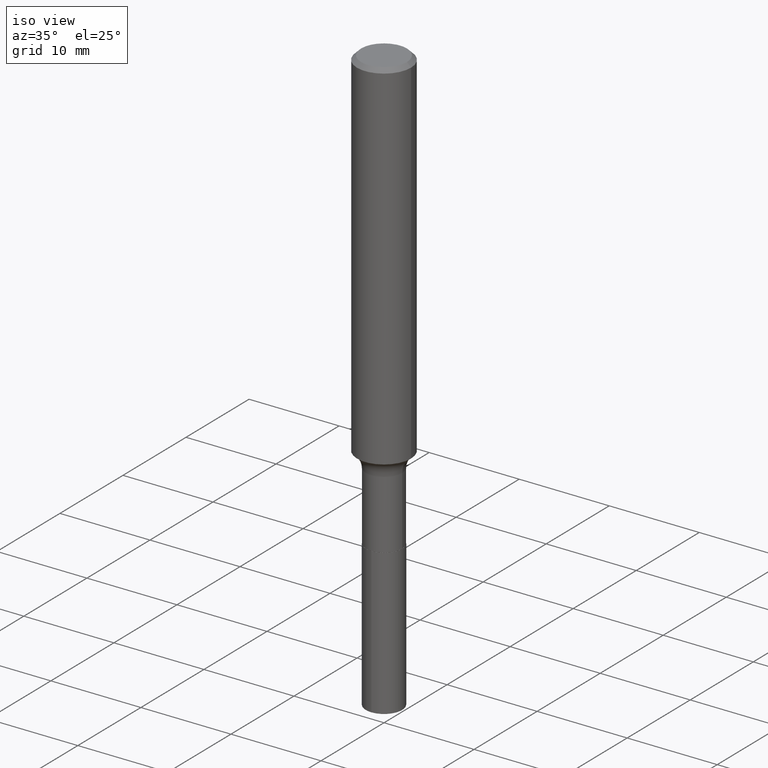
[diagram: clean part render]
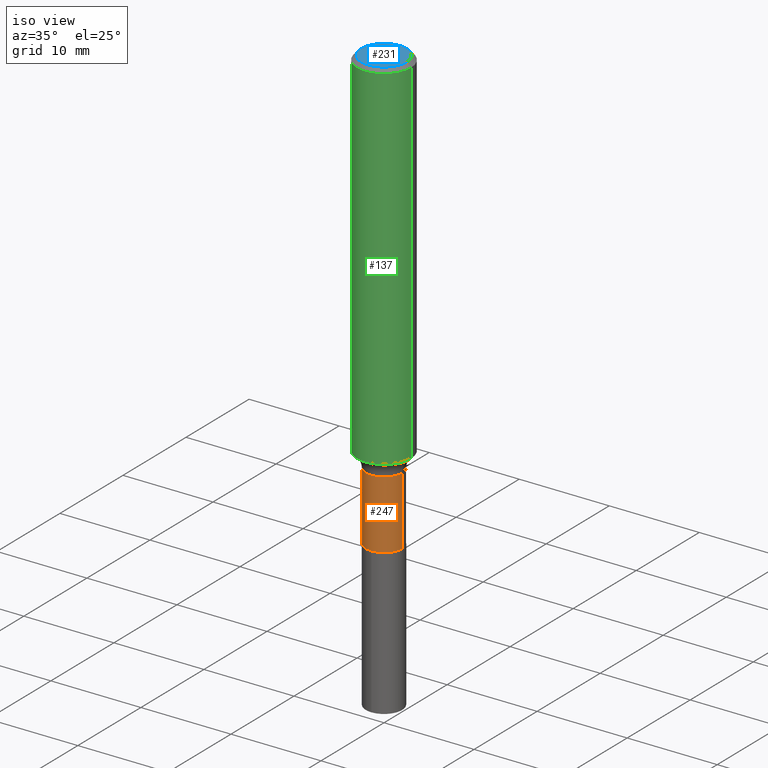
[diagram: same view with three faces highlighted in distinct colors, each labeled with its STEP entity id]
A machine part, iso view with three faces highlighted in distinct colors.
Their STEP definitions:

[orange] entity #247 — the highlighted cylindrical surface (edge-blend (fillet) strip) has radius 2.0193 mm, axis along (-0, 0, 1).
#5 = LINE ( 'NONE', #34, #167 ) ;
#6 = CARTESIAN_POINT ( 'NONE',  ( 4.716331139608654438E-29, -6.733670910092890989E-15, -1.928600000000000092 ) ) ;
#9 = AXIS2_PLACEMENT_3D ( 'NONE', #69, #297, #449 ) ;
#13 = VERTEX_POINT ( 'NONE', #149 ) ;
#16 = ORIENTED_EDGE ( 'NONE', *, *, #87, .F. ) ;
#27 = ORIENTED_EDGE ( 'NONE', *, *, #306, .F. ) ;
#34 = CARTESIAN_POINT ( 'NONE',  ( 0.07949999999999998734, -5.551455328760581522E-16, 3.876560536757768171E-30 ) ) ;
#69 = CARTESIAN_POINT ( 'NONE',  ( 3.985135966559298165E-29, -5.689717989778789257E-15, -1.629599999999999715 ) ) ;
#79 = DIRECTION ( 'NONE',  ( 1.000000000000000000, -6.982962677686267499E-15, 4.876176775795935793E-29 ) ) ;
#87 = EDGE_CURVE ( 'NONE', #267, #440, #448, .T. ) ;
#89 = CYLINDRICAL_SURFACE ( 'NONE', #249, 0.07949999999999998734 ) ;
#92 = CIRCLE ( 'NONE', #379, 0.07950000000000000122 ) ;
#117 = CARTESIAN_POINT ( 'NONE',  ( 0.000000000000000000, 0.000000000000000000, 0.000000000000000000 ) ) ;
#125 = DIRECTION ( 'NONE',  ( 1.000000000000000000, -6.982962677686265922E-15, 0.000000000000000000 ) ) ;
#149 = CARTESIAN_POINT ( 'NONE',  ( 0.07950000000000000122, -7.288816442968948846E-15, -1.928600000000000092 ) ) ;
#167 = VECTOR ( 'NONE', #418, 39.37007874015748143 ) ;
#210 = CARTESIAN_POINT ( 'NONE',  ( -0.07949999999999998734, 5.648814749292795578E-16, -3.910553396752649427E-30 ) ) ;
#238 = EDGE_CURVE ( 'NONE', #291, #13, #92, .T. ) ;
#245 = CARTESIAN_POINT ( 'NONE',  ( -0.07949999999999995959, -5.646812975006561157E-15, -1.629599999999999715 ) ) ;
#247 = ADVANCED_FACE ( 'NONE', ( #375 ), #89, .T. ) ;
#249 = AXIS2_PLACEMENT_3D ( 'NONE', #117, #468, #79 ) ;
#267 = VERTEX_POINT ( 'NONE', #245 ) ;
#270 = CARTESIAN_POINT ( 'NONE',  ( 0.07949999999999995959, -6.244863522654847902E-15, -1.629599999999999715 ) ) ;
#271 = DIRECTION ( 'NONE',  ( -2.445468806185136597E-29, 3.491481338843145583E-15, 1.000000000000000000 ) ) ;
#291 = VERTEX_POINT ( 'NONE', #376 ) ;
#297 = DIRECTION ( 'NONE',  ( -2.445468806185136597E-29, 3.491481338843145583E-15, 1.000000000000000000 ) ) ;
#306 = EDGE_CURVE ( 'NONE', #291, #267, #427, .T. ) ;
#325 = ORIENTED_EDGE ( 'NONE', *, *, #439, .T. ) ;
#326 = ORIENTED_EDGE ( 'NONE', *, *, #238, .T. ) ;
#375 = FACE_OUTER_BOUND ( 'NONE', #417, .T. ) ;
#376 = CARTESIAN_POINT ( 'NONE',  ( -0.07950000000000000122, -5.646812975006561157E-15, -1.928600000000000092 ) ) ;
#379 = AXIS2_PLACEMENT_3D ( 'NONE', #6, #271, #125 ) ;
#417 = EDGE_LOOP ( 'NONE', ( #27, #326, #325, #16 ) ) ;
#418 = DIRECTION ( 'NONE',  ( -2.445468806185136877E-29, 3.491481338843145188E-15, 1.000000000000000000 ) ) ;
#427 = LINE ( 'NONE', #210, #456 ) ;
#437 = DIRECTION ( 'NONE',  ( -2.445468806185136877E-29, 3.491481338843145188E-15, 1.000000000000000000 ) ) ;
#439 = EDGE_CURVE ( 'NONE', #13, #440, #5, .T. ) ;
#440 = VERTEX_POINT ( 'NONE', #270 ) ;
#448 = CIRCLE ( 'NONE', #9, 0.07949999999999995959 ) ;
#449 = DIRECTION ( 'NONE',  ( 1.000000000000000000, -6.982962677686269866E-15, 0.000000000000000000 ) ) ;
#456 = VECTOR ( 'NONE', #437, 39.37007874015748143 ) ;
#468 = DIRECTION ( 'NONE',  ( -2.445468806185136597E-29, 3.491481338843145583E-15, 1.000000000000000000 ) ) ;

[blue] entity #231 — the highlighted planar face has unit normal (0, -0, -1).
#83 = AXIS2_PLACEMENT_3D ( 'NONE', #462, #86, #466 ) ;
#86 = DIRECTION ( 'NONE',  ( 2.438088387897960049E-29, -3.491481338843145188E-15, -1.000000000000000000 ) ) ;
#99 = ORIENTED_EDGE ( 'NONE', *, *, #385, .T. ) ;
#130 = EDGE_LOOP ( 'NONE', ( #99, #480 ) ) ;
#187 = DIRECTION ( 'NONE',  ( -2.445468806185136597E-29, 3.491481338843145583E-15, 1.000000000000000000 ) ) ;
#195 = DIRECTION ( 'NONE',  ( 1.000000000000000000, -6.982962677686266711E-15, 4.879445411049954809E-29 ) ) ;
#231 = ADVANCED_FACE ( 'NONE', ( #273 ), #458, .F. ) ;
#240 = AXIS2_PLACEMENT_3D ( 'NONE', #460, #187, #195 ) ;
#242 = CARTESIAN_POINT ( 'NONE',  ( -0.1003850000000000159, 7.319105043583386689E-16, -3.975387207052680940E-17 ) ) ;
#248 = DIRECTION ( 'NONE',  ( -2.445468806185136597E-29, 3.491481338843145583E-15, 1.000000000000000000 ) ) ;
#253 = VERTEX_POINT ( 'NONE', #242 ) ;
#273 = FACE_OUTER_BOUND ( 'NONE', #130, .T. ) ;
#282 = DIRECTION ( 'NONE',  ( 1.000000000000000000, -6.982962677686266711E-15, 4.879445411049954809E-29 ) ) ;
#341 = CIRCLE ( 'NONE', #472, 0.1003850000000000159 ) ;
#346 = CARTESIAN_POINT ( 'NONE',  ( 0.1003850000000000159, -7.803837484803599345E-16, -3.975387207051662201E-17 ) ) ;
#347 = EDGE_CURVE ( 'NONE', #408, #253, #341, .T. ) ;
#356 = CARTESIAN_POINT ( 'NONE',  ( 9.721685407353558503E-46, -1.387999024809845952E-31, -3.975387207052179891E-17 ) ) ;
#385 = EDGE_CURVE ( 'NONE', #253, #408, #415, .T. ) ;
#408 = VERTEX_POINT ( 'NONE', #346 ) ;
#415 = CIRCLE ( 'NONE', #240, 0.1003850000000000159 ) ;
#458 = PLANE ( 'NONE',  #83 ) ;
#460 = CARTESIAN_POINT ( 'NONE',  ( 9.721685407353558503E-46, -1.387999024809845952E-31, -3.975387207052179891E-17 ) ) ;
#462 = CARTESIAN_POINT ( 'NONE',  ( 4.860842703676779252E-46, -6.939995124049229759E-32, -1.987693603526089945E-17 ) ) ;
#466 = DIRECTION ( 'NONE',  ( -1.000000000000000000, 6.982962677686265922E-15, -4.876176775795935793E-29 ) ) ;
#472 = AXIS2_PLACEMENT_3D ( 'NONE', #356, #248, #282 ) ;
#480 = ORIENTED_EDGE ( 'NONE', *, *, #347, .T. ) ;

[green] entity #137 — the highlighted cylindrical surface (edge-blend (fillet) strip) has radius 2.9997 mm, axis along (-0, 0, 1).
#29 = CARTESIAN_POINT ( 'NONE',  ( 3.820513225661906299E-29, -5.454680345324395042E-15, -1.562282543125872225 ) ) ;
#64 = VERTEX_POINT ( 'NONE', #487 ) ;
#68 = CARTESIAN_POINT ( 'NONE',  ( 0.000000000000000000, 0.000000000000000000, 0.000000000000000000 ) ) ;
#75 = CYLINDRICAL_SURFACE ( 'NONE', #140, 0.1181000000000001077 ) ;
#91 = CARTESIAN_POINT ( 'NONE',  ( 0.1181000000000001077, -8.246878922347488542E-16, 5.758764772215005345E-30 ) ) ;
#96 = ORIENTED_EDGE ( 'NONE', *, *, #309, .F. ) ;
#108 = CARTESIAN_POINT ( 'NONE',  ( 0.1180999999999999966, -8.865394841523547570E-16, -0.01771500000000010913 ) ) ;
#110 = DIRECTION ( 'NONE',  ( 1.000000000000000000, -6.982962677686266711E-15, 4.876176775795935793E-29 ) ) ;
#112 = EDGE_LOOP ( 'NONE', ( #403, #413, #452, #96 ) ) ;
#122 = DIRECTION ( 'NONE',  ( -2.445468806185136877E-29, 3.491481338843145188E-15, 1.000000000000000000 ) ) ;
#136 = VERTEX_POINT ( 'NONE', #108 ) ;
#137 = ADVANCED_FACE ( 'NONE', ( #266 ), #75, .T. ) ;
#140 = AXIS2_PLACEMENT_3D ( 'NONE', #68, #489, #110 ) ;
#141 = AXIS2_PLACEMENT_3D ( 'NONE', #29, #338, #143 ) ;
#143 = DIRECTION ( 'NONE',  ( 1.000000000000000000, -6.982962677686268288E-15, 0.000000000000000000 ) ) ;
#155 = CARTESIAN_POINT ( 'NONE',  ( 0.1181000000000001493, -6.279368237559145671E-15, -1.562282543125872225 ) ) ;
#163 = LINE ( 'NONE', #91, #181 ) ;
#170 = CARTESIAN_POINT ( 'NONE',  ( 4.332147990156996744E-31, -6.185159191760670395E-17, -0.01771500000000010913 ) ) ;
#181 = VECTOR ( 'NONE', #425, 39.37007874015748143 ) ;
#201 = CARTESIAN_POINT ( 'NONE',  ( -0.1180999999999999966, -1.919114997688321240E-15, -0.01771500000000010913 ) ) ;
#215 = VERTEX_POINT ( 'NONE', #201 ) ;
#228 = EDGE_CURVE ( 'NONE', #474, #136, #163, .T. ) ;
#254 = EDGE_CURVE ( 'NONE', #64, #215, #272, .T. ) ;
#266 = FACE_OUTER_BOUND ( 'NONE', #112, .T. ) ;
#272 = LINE ( 'NONE', #421, #431 ) ;
#309 = EDGE_CURVE ( 'NONE', #215, #136, #366, .T. ) ;
#310 = AXIS2_PLACEMENT_3D ( 'NONE', #170, #323, #434 ) ;
#323 = DIRECTION ( 'NONE',  ( -2.445468806185136597E-29, 3.491481338843145583E-15, 1.000000000000000000 ) ) ;
#338 = DIRECTION ( 'NONE',  ( -2.445468806185136597E-29, 3.491481338843145583E-15, 1.000000000000000000 ) ) ;
#361 = CIRCLE ( 'NONE', #141, 0.1181000000000002048 ) ;
#366 = CIRCLE ( 'NONE', #310, 0.1180999999999999966 ) ;
#397 = EDGE_CURVE ( 'NONE', #64, #474, #361, .T. ) ;
#403 = ORIENTED_EDGE ( 'NONE', *, *, #254, .F. ) ;
#413 = ORIENTED_EDGE ( 'NONE', *, *, #397, .T. ) ;
#421 = CARTESIAN_POINT ( 'NONE',  ( -0.1181000000000001077, 8.391509709326790846E-16, -5.809262341591049389E-30 ) ) ;
#425 = DIRECTION ( 'NONE',  ( -2.445468806185136877E-29, 3.491481338843145188E-15, 1.000000000000000000 ) ) ;
#431 = VECTOR ( 'NONE', #122, 39.37007874015748143 ) ;
#434 = DIRECTION ( 'NONE',  ( 1.000000000000000000, -6.982962677686266711E-15, 0.000000000000000000 ) ) ;
#452 = ORIENTED_EDGE ( 'NONE', *, *, #228, .T. ) ;
#474 = VERTEX_POINT ( 'NONE', #155 ) ;
#487 = CARTESIAN_POINT ( 'NONE',  ( -0.1181000000000001493, -4.615529374391714478E-15, -1.562282543125872225 ) ) ;
#489 = DIRECTION ( 'NONE',  ( -2.445468806185136597E-29, 3.491481338843145583E-15, 1.000000000000000000 ) ) ;